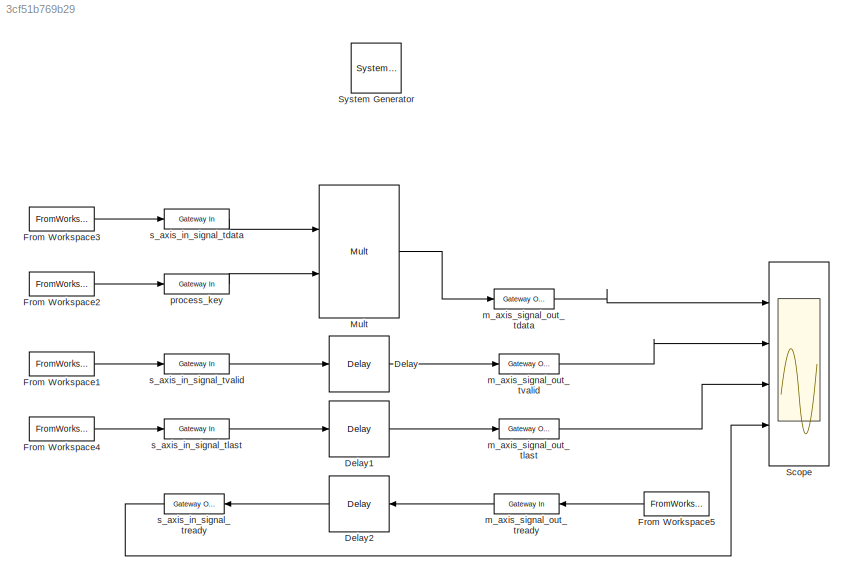
MODEL slx_3cf51b769b29
KIND model
CONFIG AbsTol = auto
CONFIG EnableMultiTasking = off
CONFIG FixedStep = auto
CONFIG InitFcn = [input, model_parameters] = model_multiply_init()
CONFIG MaxStep = auto
CONFIG MinStep = auto
CONFIG RelTol = 1e-3
CONFIG SampleTimeConstraint = Unconstrained
CONFIG Solver = VariableStepAuto
CONFIG SolverName = VariableStepAuto
CONFIG StartFcn = [input, model_parameters] = model_multiply_init()
CONFIG StartTime = 0.0
CONFIG StopTime = model_parameters.end
BLOCK [Reference]  System Generator  REF=xbsIndex_r4/ System Generator
  AttributesFormatString = System\nGenerator
  Ports = []
  SourceBlock = xbsIndex_r4/ System Generator
  SourceType = Xilinx System Generator Block
  Tag = genX
  UserDataPersistent = on
BLOCK [Reference] Delay  REF=xbsIndex_r4/Delay
  Ports = [1, 1]
  SourceBlock = xbsIndex_r4/Delay
  SourceType = Xilinx Delay Block
BLOCK [Reference] Delay1  REF=xbsIndex_r4/Delay
  Ports = [1, 1]
  SourceBlock = xbsIndex_r4/Delay
  SourceType = Xilinx Delay Block
BLOCK [Reference] Delay2  REF=xbsIndex_r4/Delay
  Ports = [1, 1]
  SourceBlock = xbsIndex_r4/Delay
  SourceType = Xilinx Delay Block
BLOCK [FromWorkspace] From Workspace1
  Interpolate = off
  OutputAfterFinalValue = Setting to zero
  SampleTime = 1/model_parameters.sampling_rate
  VariableName = input.tvalid
  ZeroCross = on
BLOCK [FromWorkspace] From Workspace2
  Interpolate = off
  OutputAfterFinalValue = Setting to zero
  SampleTime = 1/model_parameters.sampling_rate
  VariableName = input.const
  ZeroCross = on
BLOCK [FromWorkspace] From Workspace3
  Interpolate = off
  OutputAfterFinalValue = Setting to zero
  SampleTime = 1/model_parameters.sampling_rate
  VariableName = input.tdata
  ZeroCross = on
BLOCK [FromWorkspace] From Workspace4
  Interpolate = off
  OutputAfterFinalValue = Setting to zero
  SampleTime = 1/model_parameters.sampling_rate
  VariableName = input.tlast
  ZeroCross = on
BLOCK [FromWorkspace] From Workspace5
  Interpolate = off
  OutputAfterFinalValue = Setting to zero
  SampleTime = 1/model_parameters.sampling_rate
  VariableName = input.tready
  ZeroCross = on
BLOCK [Reference] Mult  REF=xbsIndex_r4/Mult
  Ports = [2, 1]
  SourceBlock = xbsIndex_r4/Mult
  SourceType = Xilinx Multiplier Block
BLOCK [Scope] Scope
  Floating = off
  NumInputPorts = 4
  Ports = [4]
  ScopeSpecificationString = Simulink.scopes.TimeScopeBlockCfg('CurrentConfiguration', extmgr.ConfigurationSet(extmgr.Configuration('Core','General UI',true),extmgr.Configuration('Core','Source UI',true),extmgr.Configuration('Sources','WiredSimulink',true),extmgr.Configuration('Visuals','Time Domain',true,'SerializedDisplays',{struct('MinYLimReal','-0.04133','MaxYLimReal','0.11236','YLabelReal','','MinYLimMag','0.00000','MaxY...<+1511ch>
BLOCK [Reference] m_axis_signal_out_tdata  REF=xbsIndex_r4/Gateway Out
  Ports = [1, 1]
  SourceBlock = xbsIndex_r4/Gateway Out
  SourceType = Xilinx Gateway Out Block
BLOCK [Reference] m_axis_signal_out_tlast  REF=xbsIndex_r4/Gateway Out
  Ports = [1, 1]
  SourceBlock = xbsIndex_r4/Gateway Out
  SourceType = Xilinx Gateway Out Block
BLOCK [Reference] m_axis_signal_out_tready  REF=xbsIndex_r4/Gateway In
  Ports = [1, 1]
  SourceBlock = xbsIndex_r4/Gateway In
  SourceType = Xilinx Gateway In Block
BLOCK [Reference] m_axis_signal_out_tvalid  REF=xbsIndex_r4/Gateway Out
  Ports = [1, 1]
  SourceBlock = xbsIndex_r4/Gateway Out
  SourceType = Xilinx Gateway Out Block
BLOCK [Reference] process_key  REF=xbsIndex_r4/Gateway In
  Ports = [1, 1]
  SourceBlock = xbsIndex_r4/Gateway In
  SourceType = Xilinx Gateway In Block
BLOCK [Reference] s_axis_in_signal_tdata  REF=xbsIndex_r4/Gateway In
  Ports = [1, 1]
  SourceBlock = xbsIndex_r4/Gateway In
  SourceType = Xilinx Gateway In Block
BLOCK [Reference] s_axis_in_signal_tlast  REF=xbsIndex_r4/Gateway In
  Ports = [1, 1]
  SourceBlock = xbsIndex_r4/Gateway In
  SourceType = Xilinx Gateway In Block
BLOCK [Reference] s_axis_in_signal_tready  REF=xbsIndex_r4/Gateway Out
  Ports = [1, 1]
  SourceBlock = xbsIndex_r4/Gateway Out
  SourceType = Xilinx Gateway Out Block
BLOCK [Reference] s_axis_in_signal_tvalid  REF=xbsIndex_r4/Gateway In
  Ports = [1, 1]
  SourceBlock = xbsIndex_r4/Gateway In
  SourceType = Xilinx Gateway In Block
LINE Delay1:1 -> m_axis_signal_out_tlast:1
LINE Delay2:1 -> s_axis_in_signal_tready:1
LINE Delay:1 -> m_axis_signal_out_tvalid:1
LINE From Workspace1:1 -> s_axis_in_signal_tvalid:1
LINE From Workspace2:1 -> process_key:1
LINE From Workspace3:1 -> s_axis_in_signal_tdata:1
LINE From Workspace4:1 -> s_axis_in_signal_tlast:1
LINE From Workspace5:1 -> m_axis_signal_out_tready:1
LINE Mult:1 -> m_axis_signal_out_tdata:1
LINE m_axis_signal_out_tdata:1 -> Scope:1
LINE m_axis_signal_out_tlast:1 -> Scope:3
LINE m_axis_signal_out_tready:1 -> Delay2:1
LINE m_axis_signal_out_tvalid:1 -> Scope:2
LINE process_key:1 -> Mult:2
LINE s_axis_in_signal_tdata:1 -> Mult:1
LINE s_axis_in_signal_tlast:1 -> Delay1:1
LINE s_axis_in_signal_tready:1 -> Scope:4
LINE s_axis_in_signal_tvalid:1 -> Delay:1
